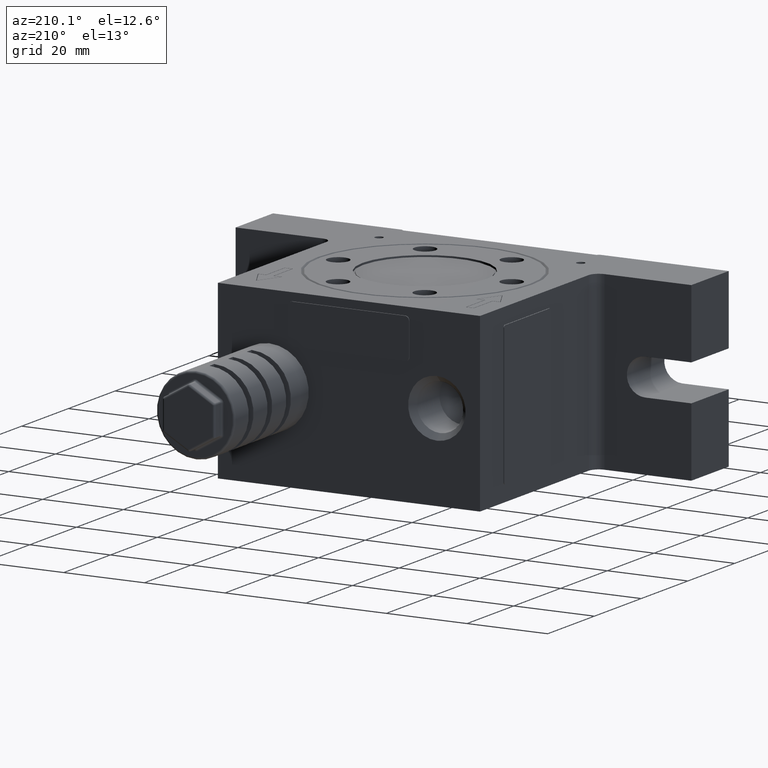
[diagram: clean part render]
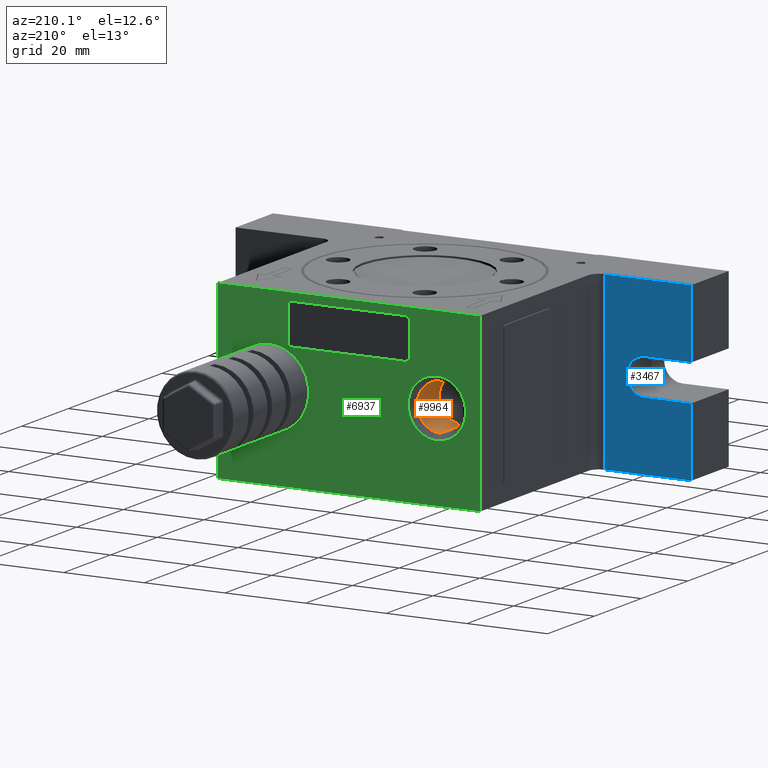
[diagram: same view with three faces highlighted in distinct colors, each labeled with its STEP entity id]
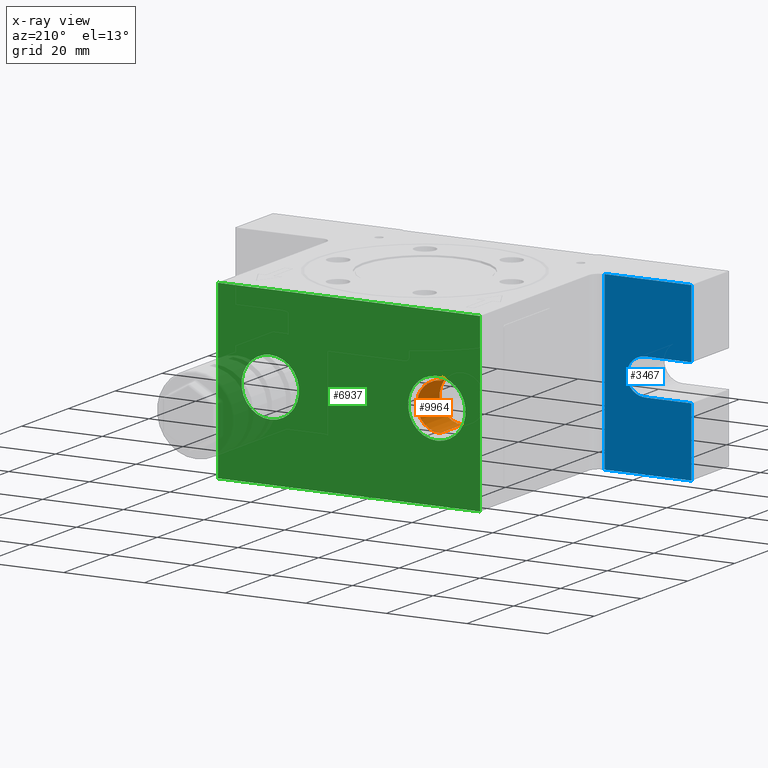
[diagram: x-ray of the same camera — body ghosted, the three highlighted faces saturated]
A machine part, auxiliary view with three faces highlighted in distinct colors.
The next image is the same camera in x-ray (body ghosted, the three faces saturated) — at least one of them is partly hidden behind the body in this view.
Their STEP definitions:

[orange] entity #9964 — the highlighted cylindrical surface (edge-blend (fillet) strip) has radius 5.725 mm, axis along (0, 1, 0).
#542 = CARTESIAN_POINT ( 'NONE',  ( -21.80000000000000100, 31.09999999999999800, -5.724999999999999600 ) ) ;
#595 = AXIS2_PLACEMENT_3D ( 'NONE', #13589, #16898, #5233 ) ;
#869 = FACE_OUTER_BOUND ( 'NONE', #8144, .T. ) ;
#1010 = DIRECTION ( 'NONE',  ( 0.0000000000000000000, 0.0000000000000000000, 1.000000000000000000 ) ) ;
#1869 = VERTEX_POINT ( 'NONE', #7824 ) ;
#2025 = CARTESIAN_POINT ( 'NONE',  ( -21.80000000000000100, 21.50000000000000000, -5.724999999999999600 ) ) ;
#3072 = VECTOR ( 'NONE', #17480, 1000.000000000000000 ) ;
#3444 = CARTESIAN_POINT ( 'NONE',  ( -21.80000000000000100, 32.50000000000000000, 5.724999999999999600 ) ) ;
#3492 = VERTEX_POINT ( 'NONE', #2025 ) ;
#3771 = CARTESIAN_POINT ( 'NONE',  ( -21.80000000000000100, 32.50000000000000000, 0.0000000000000000000 ) ) ;
#4384 = EDGE_CURVE ( 'NONE', #1869, #5158, #19680, .T. ) ;
#5158 = VERTEX_POINT ( 'NONE', #15135 ) ;
#5233 = DIRECTION ( 'NONE',  ( 0.0000000000000000000, 0.0000000000000000000, -1.000000000000000000 ) ) ;
#5979 = ORIENTED_EDGE ( 'NONE', *, *, #4384, .T. ) ;
#6026 = CIRCLE ( 'NONE', #595, 5.724999999999999600 ) ;
#7199 = CIRCLE ( 'NONE', #15755, 5.724999999999999600 ) ;
#7824 = CARTESIAN_POINT ( 'NONE',  ( -21.80000000000000100, 21.50000000000000000, 5.724999999999999600 ) ) ;
#8144 = EDGE_LOOP ( 'NONE', ( #12110, #15045, #5979, #14287 ) ) ;
#9626 = EDGE_CURVE ( 'NONE', #5158, #12293, #6026, .T. ) ;
#9964 = ADVANCED_FACE ( 'NONE', ( #869 ), #13565, .F. ) ;
#10565 = DIRECTION ( 'NONE',  ( 0.0000000000000000000, 0.0000000000000000000, 1.000000000000000000 ) ) ;
#12110 = ORIENTED_EDGE ( 'NONE', *, *, #13853, .F. ) ;
#12293 = VERTEX_POINT ( 'NONE', #542 ) ;
#12820 = CARTESIAN_POINT ( 'NONE',  ( -21.80000000000000100, 21.50000000000000000, 0.0000000000000000000 ) ) ;
#13512 = EDGE_CURVE ( 'NONE', #1869, #3492, #7199, .T. ) ;
#13565 = CYLINDRICAL_SURFACE ( 'NONE', #13929, 5.724999999999999600 ) ;
#13589 = CARTESIAN_POINT ( 'NONE',  ( -21.80000000000000100, 31.09999999999999800, 0.0000000000000000000 ) ) ;
#13853 = EDGE_CURVE ( 'NONE', #3492, #12293, #19894, .T. ) ;
#13929 = AXIS2_PLACEMENT_3D ( 'NONE', #3771, #18756, #10565 ) ;
#14287 = ORIENTED_EDGE ( 'NONE', *, *, #9626, .T. ) ;
#15045 = ORIENTED_EDGE ( 'NONE', *, *, #13512, .F. ) ;
#15135 = CARTESIAN_POINT ( 'NONE',  ( -21.80000000000000100, 31.09999999999999800, 5.724999999999999600 ) ) ;
#15289 = VECTOR ( 'NONE', #18360, 1000.000000000000000 ) ;
#15755 = AXIS2_PLACEMENT_3D ( 'NONE', #12820, #15927, #1010 ) ;
#15927 = DIRECTION ( 'NONE',  ( 0.0000000000000000000, 1.000000000000000000, 0.0000000000000000000 ) ) ;
#16898 = DIRECTION ( 'NONE',  ( -0.0000000000000000000, 1.000000000000000000, -0.0000000000000000000 ) ) ;
#17480 = DIRECTION ( 'NONE',  ( 0.0000000000000000000, 1.000000000000000000, 0.0000000000000000000 ) ) ;
#18360 = DIRECTION ( 'NONE',  ( 0.0000000000000000000, 1.000000000000000000, 0.0000000000000000000 ) ) ;
#18756 = DIRECTION ( 'NONE',  ( 0.0000000000000000000, 1.000000000000000000, 0.0000000000000000000 ) ) ;
#19680 = LINE ( 'NONE', #3444, #15289 ) ;
#19894 = LINE ( 'NONE', #20599, #3072 ) ;
#20599 = CARTESIAN_POINT ( 'NONE',  ( -21.80000000000000100, 32.50000000000000000, -5.724999999999999600 ) ) ;

[blue] entity #3467 — the highlighted planar face has unit normal (0, -1, 0).
#9 = EDGE_CURVE ( 'NONE', #15895, #10400, #15637, .T. ) ;
#381 = CARTESIAN_POINT ( 'NONE',  ( -56.50000000000000000, -16.50000000000000000, -21.50000000000000000 ) ) ;
#849 = AXIS2_PLACEMENT_3D ( 'NONE', #8388, #3331, #6651 ) ;
#981 = CARTESIAN_POINT ( 'NONE',  ( -45.00000000000000000, -16.50000000000000000, -4.500000000000000000 ) ) ;
#1226 = LINE ( 'NONE', #10744, #13949 ) ;
#1640 = PLANE ( 'NONE',  #1940 ) ;
#1667 = ORIENTED_EDGE ( 'NONE', *, *, #6380, .F. ) ;
#1940 = AXIS2_PLACEMENT_3D ( 'NONE', #16923, #7074, #8600 ) ;
#2049 = VERTEX_POINT ( 'NONE', #7178 ) ;
#2469 = ORIENTED_EDGE ( 'NONE', *, *, #7123, .T. ) ;
#2530 = CARTESIAN_POINT ( 'NONE',  ( -35.00000000000000000, -16.50000000000000000, -21.50000000000000000 ) ) ;
#2725 = CARTESIAN_POINT ( 'NONE',  ( -56.50000000000000000, -16.50000000000000000, -21.50000000000000000 ) ) ;
#3331 = DIRECTION ( 'NONE',  ( 0.0000000000000000000, 1.000000000000000000, 0.0000000000000000000 ) ) ;
#3431 = CARTESIAN_POINT ( 'NONE',  ( -56.50000000000000000, -16.50000000000000000, -21.50000000000000000 ) ) ;
#3467 = ADVANCED_FACE ( 'NONE', ( #20122 ), #1640, .F. ) ;
#3868 = DIRECTION ( 'NONE',  ( 0.0000000000000000000, 0.0000000000000000000, 1.000000000000000000 ) ) ;
#4142 = EDGE_CURVE ( 'NONE', #16110, #11791, #9573, .T. ) ;
#4302 = DIRECTION ( 'NONE',  ( 1.000000000000000000, 0.0000000000000000000, 0.0000000000000000000 ) ) ;
#4319 = CARTESIAN_POINT ( 'NONE',  ( -35.00000000000000000, -16.50000000000000000, -21.50000000000000000 ) ) ;
#4801 = VERTEX_POINT ( 'NONE', #381 ) ;
#4846 = VECTOR ( 'NONE', #10760, 1000.000000000000000 ) ;
#5578 = LINE ( 'NONE', #7452, #10248 ) ;
#5939 = CARTESIAN_POINT ( 'NONE',  ( -56.50000000000000000, -16.50000000000000000, 21.50000000000000000 ) ) ;
#5989 = ORIENTED_EDGE ( 'NONE', *, *, #9, .F. ) ;
#6380 = EDGE_CURVE ( 'NONE', #10400, #6692, #19882, .T. ) ;
#6651 = DIRECTION ( 'NONE',  ( 0.0000000000000000000, 0.0000000000000000000, -1.000000000000000000 ) ) ;
#6679 = ORIENTED_EDGE ( 'NONE', *, *, #8139, .F. ) ;
#6692 = VERTEX_POINT ( 'NONE', #981 ) ;
#7074 = DIRECTION ( 'NONE',  ( 0.0000000000000000000, -1.000000000000000000, 0.0000000000000000000 ) ) ;
#7123 = EDGE_CURVE ( 'NONE', #13116, #16110, #1226, .T. ) ;
#7178 = CARTESIAN_POINT ( 'NONE',  ( -56.50000000000000000, -16.50000000000000000, -4.500000000000000000 ) ) ;
#7271 = ORIENTED_EDGE ( 'NONE', *, *, #20777, .F. ) ;
#7416 = CARTESIAN_POINT ( 'NONE',  ( -56.50000000000000000, -16.50000000000000000, -21.50000000000000000 ) ) ;
#7452 = CARTESIAN_POINT ( 'NONE',  ( -56.50000000000000000, -16.50000000000000000, -4.500000000000000000 ) ) ;
#7685 = VECTOR ( 'NONE', #3868, 1000.000000000000000 ) ;
#8139 = EDGE_CURVE ( 'NONE', #6692, #2049, #5578, .T. ) ;
#8356 = VECTOR ( 'NONE', #20210, 1000.000000000000000 ) ;
#8388 = CARTESIAN_POINT ( 'NONE',  ( -45.00000000000000000, -16.50000000000000000, -3.520743267239335000E-015 ) ) ;
#8600 = DIRECTION ( 'NONE',  ( 0.0000000000000000000, 0.0000000000000000000, -1.000000000000000000 ) ) ;
#9068 = DIRECTION ( 'NONE',  ( 1.000000000000000000, 0.0000000000000000000, 0.0000000000000000000 ) ) ;
#9166 = ORIENTED_EDGE ( 'NONE', *, *, #4142, .T. ) ;
#9573 = LINE ( 'NONE', #4319, #15790 ) ;
#9604 = EDGE_LOOP ( 'NONE', ( #17718, #6679, #1667, #5989, #19264, #2469, #9166, #7271 ) ) ;
#10248 = VECTOR ( 'NONE', #16155, 1000.000000000000000 ) ;
#10400 = VERTEX_POINT ( 'NONE', #11546 ) ;
#10744 = CARTESIAN_POINT ( 'NONE',  ( -56.50000000000000000, -16.50000000000000000, 21.50000000000000000 ) ) ;
#10760 = DIRECTION ( 'NONE',  ( 0.0000000000000000000, 0.0000000000000000000, 1.000000000000000000 ) ) ;
#11546 = CARTESIAN_POINT ( 'NONE',  ( -45.00000000000000000, -16.50000000000000000, 4.500000000000000000 ) ) ;
#11740 = EDGE_CURVE ( 'NONE', #15895, #13116, #19925, .T. ) ;
#11791 = VERTEX_POINT ( 'NONE', #2530 ) ;
#12122 = CARTESIAN_POINT ( 'NONE',  ( -56.50000000000000000, -16.50000000000000000, 4.500000000000000000 ) ) ;
#12730 = DIRECTION ( 'NONE',  ( -0.0000000000000000000, -0.0000000000000000000, -1.000000000000000000 ) ) ;
#13116 = VERTEX_POINT ( 'NONE', #5939 ) ;
#13282 = VECTOR ( 'NONE', #4302, 1000.000000000000000 ) ;
#13944 = LINE ( 'NONE', #3431, #7685 ) ;
#13949 = VECTOR ( 'NONE', #9068, 1000.000000000000000 ) ;
#14067 = LINE ( 'NONE', #2725, #13282 ) ;
#14294 = EDGE_CURVE ( 'NONE', #4801, #2049, #13944, .T. ) ;
#14350 = CARTESIAN_POINT ( 'NONE',  ( -35.00000000000000000, -16.50000000000000000, 21.50000000000000000 ) ) ;
#15637 = LINE ( 'NONE', #12122, #8356 ) ;
#15790 = VECTOR ( 'NONE', #12730, 1000.000000000000000 ) ;
#15895 = VERTEX_POINT ( 'NONE', #20070 ) ;
#16110 = VERTEX_POINT ( 'NONE', #14350 ) ;
#16155 = DIRECTION ( 'NONE',  ( -1.000000000000000000, 0.0000000000000000000, 7.542275982507860100E-016 ) ) ;
#16923 = CARTESIAN_POINT ( 'NONE',  ( -56.50000000000000000, -16.50000000000000000, -21.50000000000000000 ) ) ;
#17718 = ORIENTED_EDGE ( 'NONE', *, *, #14294, .T. ) ;
#19264 = ORIENTED_EDGE ( 'NONE', *, *, #11740, .T. ) ;
#19882 = CIRCLE ( 'NONE', #849, 4.500000000000000000 ) ;
#19925 = LINE ( 'NONE', #7416, #4846 ) ;
#20070 = CARTESIAN_POINT ( 'NONE',  ( -56.50000000000000000, -16.50000000000000000, 4.500000000000000000 ) ) ;
#20122 = FACE_OUTER_BOUND ( 'NONE', #9604, .T. ) ;
#20210 = DIRECTION ( 'NONE',  ( 1.000000000000000000, 0.0000000000000000000, 1.508455196501570000E-016 ) ) ;
#20777 = EDGE_CURVE ( 'NONE', #4801, #11791, #14067, .T. ) ;

[green] entity #6937 — the highlighted planar face has unit normal (0, -1, 0).
#135 = ORIENTED_EDGE ( 'NONE', *, *, #15118, .F. ) ;
#489 = DIRECTION ( 'NONE',  ( 0.0000000000000000000, 0.0000000000000000000, 1.000000000000000000 ) ) ;
#749 = AXIS2_PLACEMENT_3D ( 'NONE', #4593, #19351, #14589 ) ;
#2251 = CARTESIAN_POINT ( 'NONE',  ( -56.50000000000000000, 32.50000000000000000, -21.50000000000000000 ) ) ;
#2478 = EDGE_CURVE ( 'NONE', #4747, #13361, #2585, .T. ) ;
#2585 = CIRCLE ( 'NONE', #14683, 7.125000000000000000 ) ;
#2683 = VERTEX_POINT ( 'NONE', #19535 ) ;
#2813 = LINE ( 'NONE', #13307, #5646 ) ;
#2923 = VERTEX_POINT ( 'NONE', #5553 ) ;
#3074 = EDGE_LOOP ( 'NONE', ( #135, #11895, #6817, #10757 ) ) ;
#3530 = EDGE_CURVE ( 'NONE', #2923, #10863, #19865, .T. ) ;
#4068 = VECTOR ( 'NONE', #13906, 1000.000000000000000 ) ;
#4105 = AXIS2_PLACEMENT_3D ( 'NONE', #18249, #19827, #9895 ) ;
#4322 = FACE_OUTER_BOUND ( 'NONE', #3074, .T. ) ;
#4369 = CARTESIAN_POINT ( 'NONE',  ( 19.50000000000000000, 32.50000000000000000, 0.0000000000000000000 ) ) ;
#4394 = VERTEX_POINT ( 'NONE', #8434 ) ;
#4593 = CARTESIAN_POINT ( 'NONE',  ( 19.50000000000000000, 32.50000000000000000, 0.0000000000000000000 ) ) ;
#4747 = VERTEX_POINT ( 'NONE', #9700 ) ;
#4776 = CARTESIAN_POINT ( 'NONE',  ( -32.50000000000000000, 32.50000000000000000, -21.50000000000000000 ) ) ;
#5336 = VECTOR ( 'NONE', #14113, 1000.000000000000000 ) ;
#5420 = CARTESIAN_POINT ( 'NONE',  ( -21.80000000000000100, 32.50000000000000000, -7.125000000000003600 ) ) ;
#5553 = CARTESIAN_POINT ( 'NONE',  ( 32.50000000000000000, 32.50000000000000000, -21.50000000000000000 ) ) ;
#5646 = VECTOR ( 'NONE', #16615, 1000.000000000000000 ) ;
#6267 = ORIENTED_EDGE ( 'NONE', *, *, #17859, .T. ) ;
#6817 = ORIENTED_EDGE ( 'NONE', *, *, #3530, .T. ) ;
#6937 = ADVANCED_FACE ( 'NONE', ( #20651, #15744, #4322 ), #18653, .F. ) ;
#6992 = DIRECTION ( 'NONE',  ( 0.0000000000000000000, 0.0000000000000000000, -1.000000000000000000 ) ) ;
#8118 = ORIENTED_EDGE ( 'NONE', *, *, #2478, .T. ) ;
#8434 = CARTESIAN_POINT ( 'NONE',  ( 19.50000000000000000, 32.50000000000000000, 7.125000000000003600 ) ) ;
#8884 = CARTESIAN_POINT ( 'NONE',  ( -56.50000000000000000, 32.50000000000000000, 21.50000000000000000 ) ) ;
#9248 = CARTESIAN_POINT ( 'NONE',  ( -21.80000000000000100, 32.50000000000000000, 0.0000000000000000000 ) ) ;
#9257 = EDGE_CURVE ( 'NONE', #10863, #14927, #15907, .T. ) ;
#9700 = CARTESIAN_POINT ( 'NONE',  ( -21.80000000000000100, 32.50000000000000000, 7.125000000000003600 ) ) ;
#9895 = DIRECTION ( 'NONE',  ( 0.0000000000000000000, 0.0000000000000000000, -1.000000000000000000 ) ) ;
#10126 = AXIS2_PLACEMENT_3D ( 'NONE', #15181, #12009, #6992 ) ;
#10390 = AXIS2_PLACEMENT_3D ( 'NONE', #4369, #10960, #15968 ) ;
#10757 = ORIENTED_EDGE ( 'NONE', *, *, #9257, .T. ) ;
#10863 = VERTEX_POINT ( 'NONE', #4776 ) ;
#10960 = DIRECTION ( 'NONE',  ( 0.0000000000000000000, -1.000000000000000000, 0.0000000000000000000 ) ) ;
#11548 = CIRCLE ( 'NONE', #4105, 7.125000000000000000 ) ;
#11895 = ORIENTED_EDGE ( 'NONE', *, *, #13785, .F. ) ;
#12009 = DIRECTION ( 'NONE',  ( 0.0000000000000000000, -1.000000000000000000, 0.0000000000000000000 ) ) ;
#12295 = VERTEX_POINT ( 'NONE', #18995 ) ;
#12725 = EDGE_CURVE ( 'NONE', #12295, #4394, #20706, .T. ) ;
#12796 = VECTOR ( 'NONE', #489, 1000.000000000000000 ) ;
#13244 = CARTESIAN_POINT ( 'NONE',  ( -32.50000000000000000, 32.50000000000000000, 21.50000000000000000 ) ) ;
#13307 = CARTESIAN_POINT ( 'NONE',  ( 32.50000000000000000, 32.50000000000000000, -21.50000000000000000 ) ) ;
#13361 = VERTEX_POINT ( 'NONE', #5420 ) ;
#13704 = ORIENTED_EDGE ( 'NONE', *, *, #12725, .T. ) ;
#13785 = EDGE_CURVE ( 'NONE', #2923, #2683, #2813, .T. ) ;
#13906 = DIRECTION ( 'NONE',  ( -1.000000000000000000, 0.0000000000000000000, 0.0000000000000000000 ) ) ;
#14059 = DIRECTION ( 'NONE',  ( 0.0000000000000000000, -1.000000000000000000, 0.0000000000000000000 ) ) ;
#14113 = DIRECTION ( 'NONE',  ( -1.000000000000000000, 0.0000000000000000000, 0.0000000000000000000 ) ) ;
#14162 = LINE ( 'NONE', #8884, #5336 ) ;
#14589 = DIRECTION ( 'NONE',  ( 0.0000000000000000000, 0.0000000000000000000, -1.000000000000000000 ) ) ;
#14683 = AXIS2_PLACEMENT_3D ( 'NONE', #9248, #14059, #20628 ) ;
#14900 = EDGE_LOOP ( 'NONE', ( #6267, #13704 ) ) ;
#14909 = EDGE_CURVE ( 'NONE', #13361, #4747, #11548, .T. ) ;
#14927 = VERTEX_POINT ( 'NONE', #13244 ) ;
#15118 = EDGE_CURVE ( 'NONE', #2683, #14927, #14162, .T. ) ;
#15145 = ORIENTED_EDGE ( 'NONE', *, *, #14909, .T. ) ;
#15181 = CARTESIAN_POINT ( 'NONE',  ( -56.50000000000000000, 32.50000000000000000, 21.50000000000000000 ) ) ;
#15744 = FACE_BOUND ( 'NONE', #21020, .T. ) ;
#15907 = LINE ( 'NONE', #18518, #12796 ) ;
#15968 = DIRECTION ( 'NONE',  ( 0.0000000000000000000, 0.0000000000000000000, -1.000000000000000000 ) ) ;
#16615 = DIRECTION ( 'NONE',  ( 0.0000000000000000000, 0.0000000000000000000, 1.000000000000000000 ) ) ;
#17162 = CIRCLE ( 'NONE', #10390, 7.125000000000000000 ) ;
#17859 = EDGE_CURVE ( 'NONE', #4394, #12295, #17162, .T. ) ;
#18249 = CARTESIAN_POINT ( 'NONE',  ( -21.80000000000000100, 32.50000000000000000, 0.0000000000000000000 ) ) ;
#18518 = CARTESIAN_POINT ( 'NONE',  ( -32.50000000000000000, 32.50000000000000000, -21.50000000000000000 ) ) ;
#18653 = PLANE ( 'NONE',  #10126 ) ;
#18995 = CARTESIAN_POINT ( 'NONE',  ( 19.50000000000000000, 32.50000000000000000, -7.125000000000003600 ) ) ;
#19351 = DIRECTION ( 'NONE',  ( 0.0000000000000000000, -1.000000000000000000, 0.0000000000000000000 ) ) ;
#19535 = CARTESIAN_POINT ( 'NONE',  ( 32.50000000000000000, 32.50000000000000000, 21.50000000000000000 ) ) ;
#19827 = DIRECTION ( 'NONE',  ( 0.0000000000000000000, -1.000000000000000000, 0.0000000000000000000 ) ) ;
#19865 = LINE ( 'NONE', #2251, #4068 ) ;
#20628 = DIRECTION ( 'NONE',  ( 0.0000000000000000000, 0.0000000000000000000, -1.000000000000000000 ) ) ;
#20651 = FACE_BOUND ( 'NONE', #14900, .T. ) ;
#20706 = CIRCLE ( 'NONE', #749, 7.125000000000000000 ) ;
#21020 = EDGE_LOOP ( 'NONE', ( #8118, #15145 ) ) ;